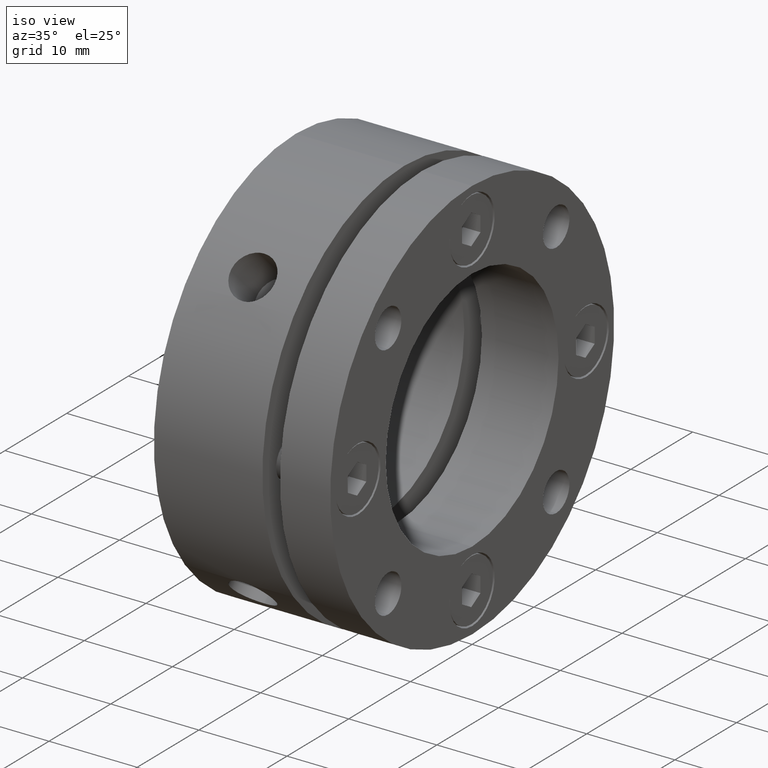
[diagram: clean part render]
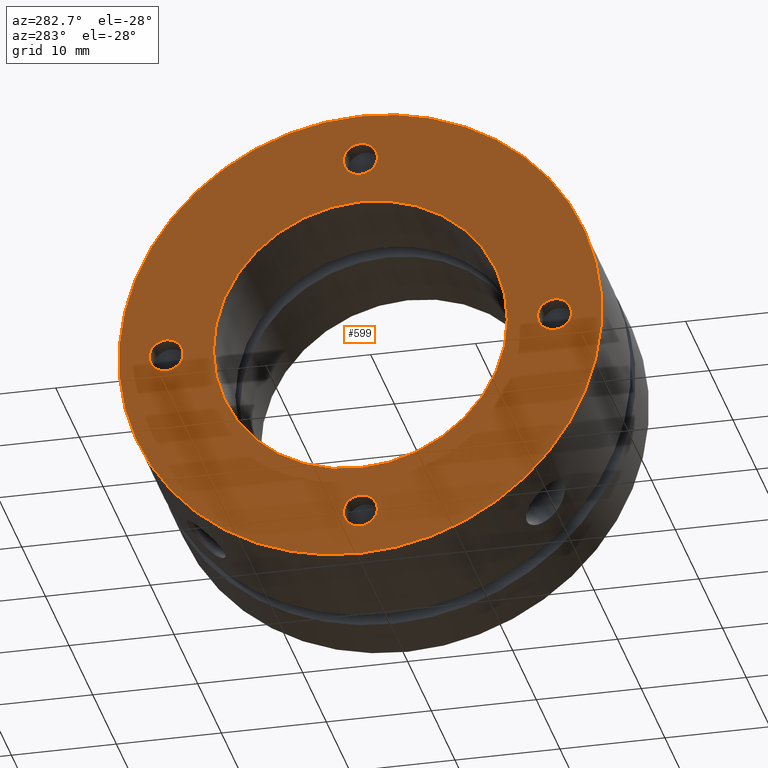
[diagram: tour spotlight — one face highlighted and labeled with its STEP entity id]
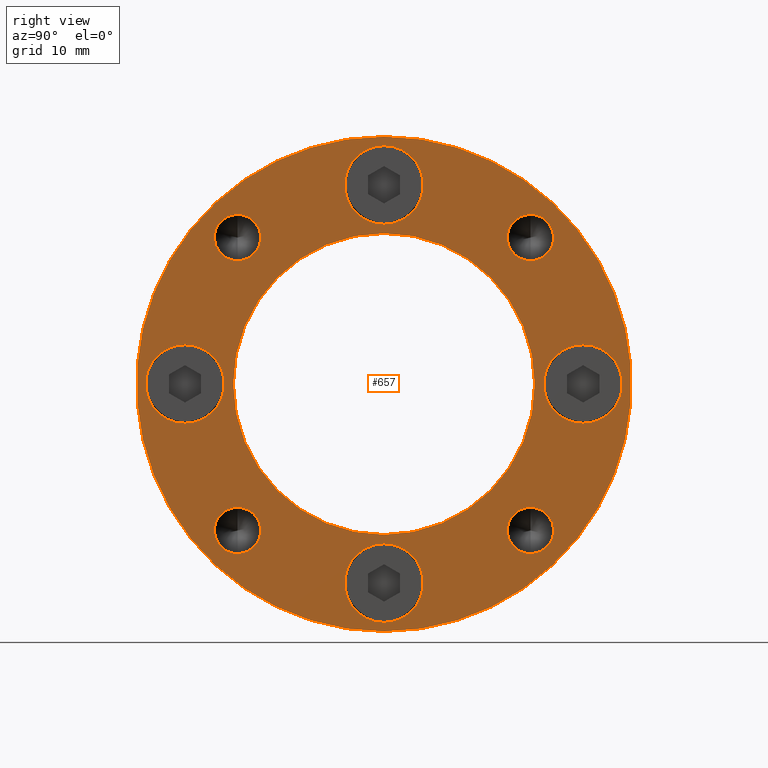
[diagram: tour spotlight — one face highlighted and labeled with its STEP entity id]
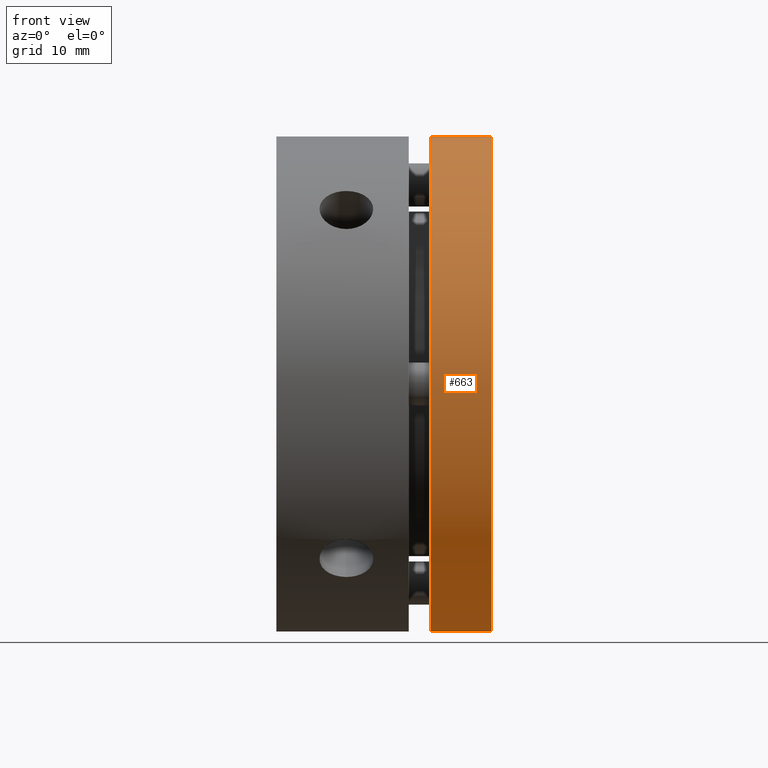
[diagram: tour spotlight — one face highlighted and labeled with its STEP entity id]
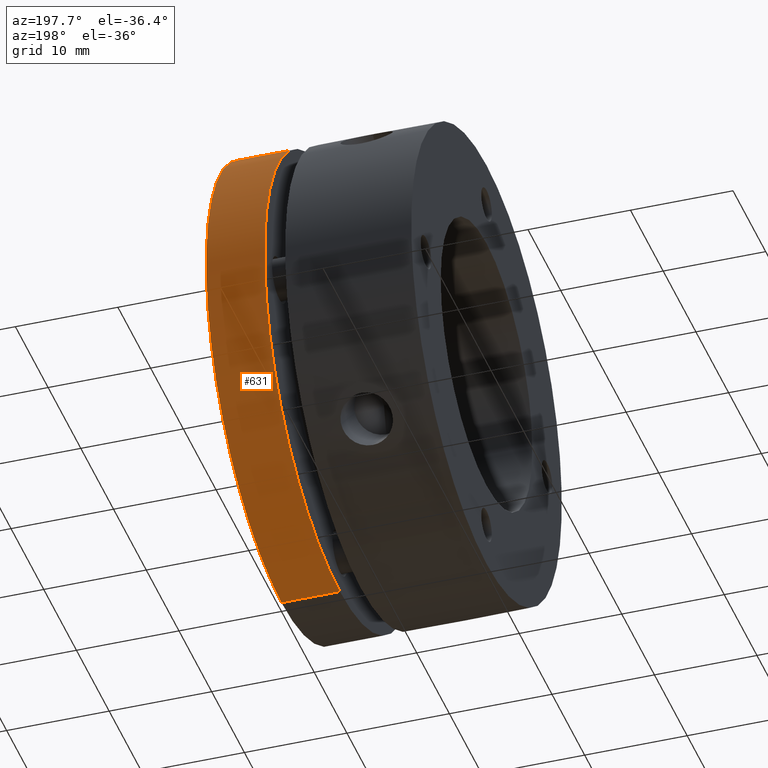
[diagram: tour spotlight — one face highlighted and labeled with its STEP entity id]
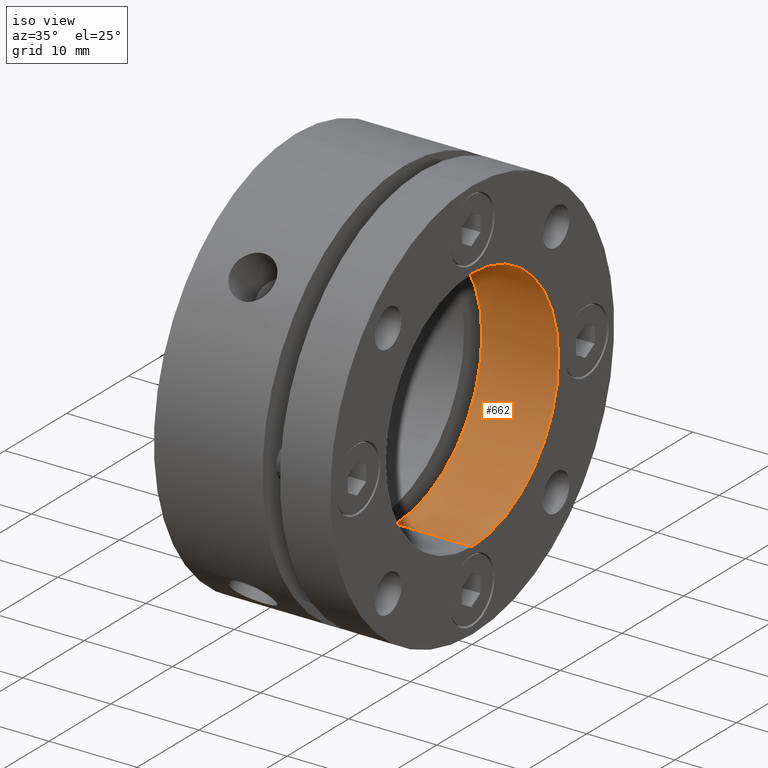
[diagram: tour spotlight — one face highlighted and labeled with its STEP entity id]
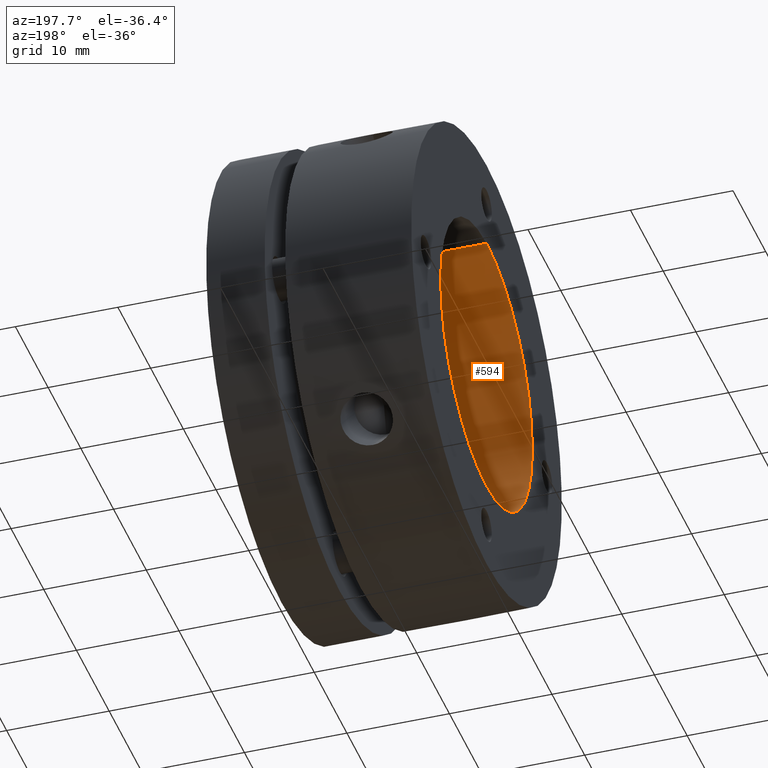
[diagram: tour spotlight — one face highlighted and labeled with its STEP entity id]
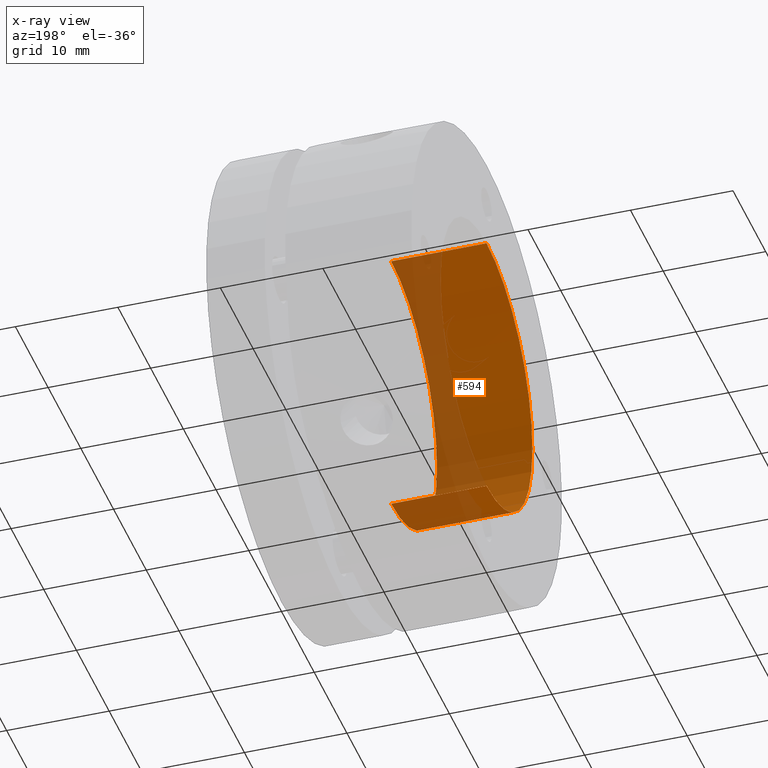
[diagram: x-ray of the same camera — body ghosted, this tour face saturated]
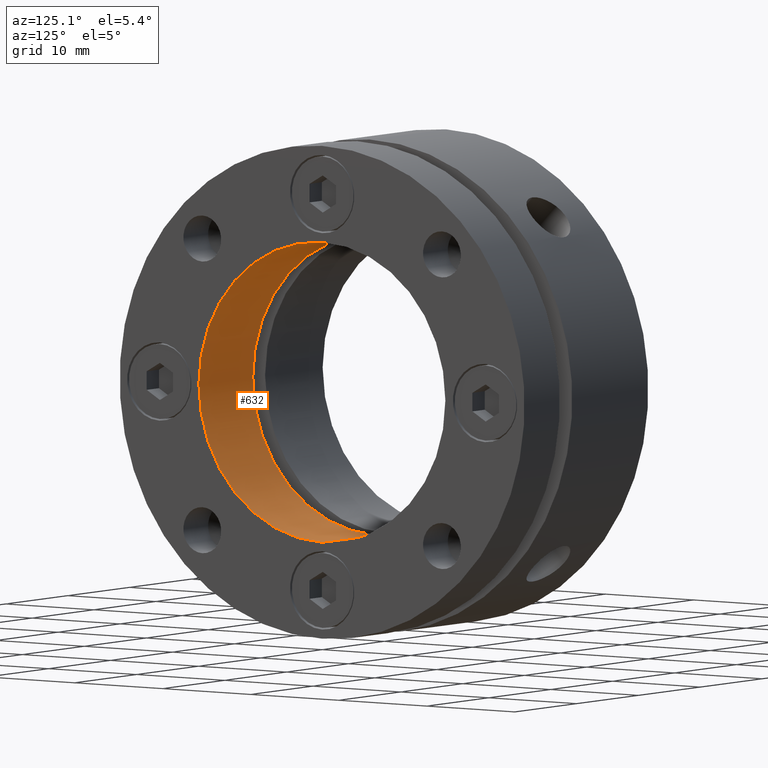
[diagram: tour spotlight — one face highlighted and labeled with its STEP entity id]
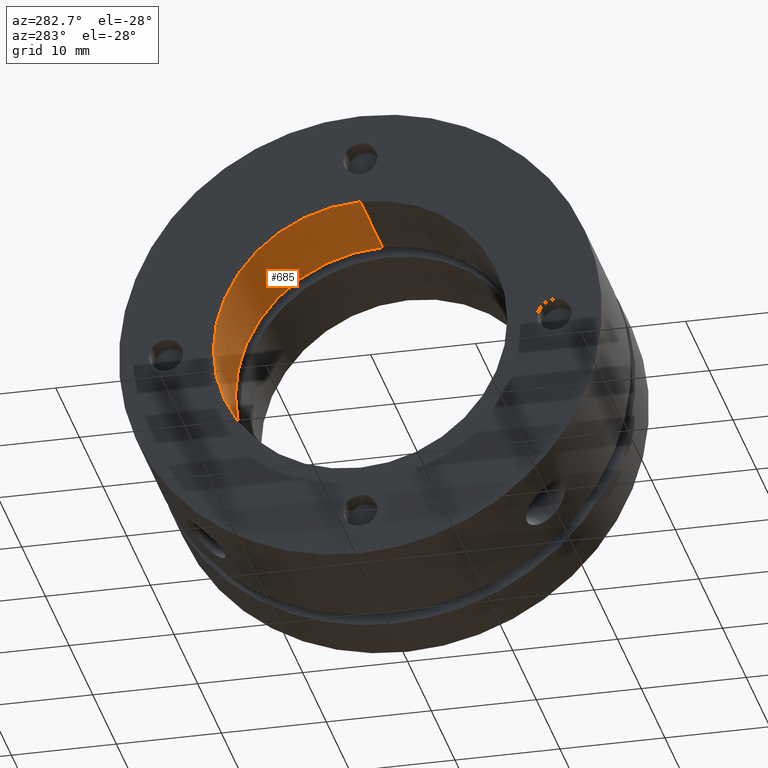
[diagram: tour spotlight — one face highlighted and labeled with its STEP entity id]
A machine part: a face-by-face anatomy tour. The part has 142 B-rep faces; the first image is the clean iso view, then the 8 largest visible faces are spotlighted one at a time (largest first), each with its STEP entity span.

Face 1 — auxiliary view, entity #599. In plain terms, the highlighted planar face has unit normal (-1, 0, 0).
Definition (entity closure, byte-faithful):
#119 = CIRCLE ( 'NONE', #2738, 1.621000000000000900 ) ;
#131 = CIRCLE ( 'NONE', #2741, 14.00000000000000200 ) ;
#132 = CIRCLE ( 'NONE', #2743, 1.621000000000000900 ) ;
#140 = CIRCLE ( 'NONE', #2746, 1.621000000000000000 ) ;
#146 = CIRCLE ( 'NONE', #2750, 23.00000000000000000 ) ;
#155 = CIRCLE ( 'NONE', #2754, 23.00000000000000000 ) ;
#162 = CIRCLE ( 'NONE', #2755, 1.621000000000000000 ) ;
#200 = CIRCLE ( 'NONE', #2260, 14.00000000000000200 ) ;
#226 = CIRCLE ( 'NONE', #2264, 1.621000000000000900 ) ;
#238 = CIRCLE ( 'NONE', #2266, 1.621000000000000000 ) ;
#347 = CIRCLE ( 'NONE', #1642, 1.621000000000000900 ) ;
#356 = CIRCLE ( 'NONE', #2288, 1.621000000000000000 ) ;
#599 = ADVANCED_FACE ( 'NONE', ( #1898, #1906, #1902, #1900, #1904, #1907 ), #2859, .T. ) ;
#765 = CARTESIAN_POINT ( 'NONE',  ( -3.469446951953614200E-015, 0.0000000000000000000, 0.0000000000000000000 ) ) ;
#766 = DIRECTION ( 'NONE',  ( 1.000000000000000000, 0.0000000000000000000, 0.0000000000000000000 ) ) ;
#767 = DIRECTION ( 'NONE',  ( 0.0000000000000000000, 0.0000000000000000000, -1.000000000000000000 ) ) ;
#783 = CARTESIAN_POINT ( 'NONE',  ( -4.336808689942017700E-015, 0.0000000000000000000, 18.50000000000001100 ) ) ;
#784 = DIRECTION ( 'NONE',  ( 1.000000000000000000, -0.0000000000000000000, -0.0000000000000000000 ) ) ;
#785 = DIRECTION ( 'NONE',  ( 0.0000000000000000000, 0.0000000000000000000, 1.000000000000000000 ) ) ;
#793 = CARTESIAN_POINT ( 'NONE',  ( -4.336808689942017700E-015, -18.50000000000001100, 1.132798000000000200E-015 ) ) ;
#794 = DIRECTION ( 'NONE',  ( 1.000000000000000000, -0.0000000000000000000, -0.0000000000000000000 ) ) ;
#795 = DIRECTION ( 'NONE',  ( 0.0000000000000000000, 0.0000000000000000000, 1.000000000000000000 ) ) ;
#894 = CARTESIAN_POINT ( 'NONE',  ( -4.336808689942017700E-015, 18.50000000000001100, -3.398395000000000300E-015 ) ) ;
#895 = DIRECTION ( 'NONE',  ( 1.000000000000000000, -0.0000000000000000000, -0.0000000000000000000 ) ) ;
#896 = DIRECTION ( 'NONE',  ( 0.0000000000000000000, 0.0000000000000000000, 1.000000000000000000 ) ) ;
#1174 = CARTESIAN_POINT ( 'NONE',  ( -4.336808689942017700E-015, -2.265597000000000100E-015, -18.50000000000001100 ) ) ;
#1175 = DIRECTION ( 'NONE',  ( 1.000000000000000000, -0.0000000000000000000, -0.0000000000000000000 ) ) ;
#1176 = DIRECTION ( 'NONE',  ( 0.0000000000000000000, 0.0000000000000000000, 1.000000000000000000 ) ) ;
#1351 = ORIENTED_EDGE ( 'NONE', *, *, #2184, .T. ) ;
#1352 = ORIENTED_EDGE ( 'NONE', *, *, #2177, .T. ) ;
#1353 = ORIENTED_EDGE ( 'NONE', *, *, #1523, .T. ) ;
#1462 = EDGE_CURVE ( 'NONE', #1563, #1575, #119, .T. ) ;
#1523 = EDGE_CURVE ( 'NONE', #1604, #1611, #131, .T. ) ;
#1528 = EDGE_CURVE ( 'NONE', #1617, #1557, #132, .T. ) ;
#1531 = EDGE_CURVE ( 'NONE', #1573, #1568, #140, .T. ) ;
#1539 = EDGE_CURVE ( 'NONE', #2101, #2096, #146, .T. ) ;
#1544 = EDGE_CURVE ( 'NONE', #2096, #2101, #155, .T. ) ;
#1548 = EDGE_CURVE ( 'NONE', #1615, #1556, #162, .T. ) ;
#1556 = VERTEX_POINT ( 'NONE', #3397 ) ;
#1557 = VERTEX_POINT ( 'NONE', #3434 ) ;
#1563 = VERTEX_POINT ( 'NONE', #3439 ) ;
#1568 = VERTEX_POINT ( 'NONE', #3444 ) ;
#1573 = VERTEX_POINT ( 'NONE', #3449 ) ;
#1575 = VERTEX_POINT ( 'NONE', #3451 ) ;
#1604 = VERTEX_POINT ( 'NONE', #3480 ) ;
#1611 = VERTEX_POINT ( 'NONE', #3487 ) ;
#1615 = VERTEX_POINT ( 'NONE', #3491 ) ;
#1617 = VERTEX_POINT ( 'NONE', #3493 ) ;
#1642 = AXIS2_PLACEMENT_3D ( 'NONE', #1174, #1175, #1176 ) ;
#1826 = EDGE_LOOP ( 'NONE', ( #2079, #2082 ) ) ;
#1852 = EDGE_LOOP ( 'NONE', ( #1351, #2059 ) ) ;
#1853 = EDGE_LOOP ( 'NONE', ( #2062, #2058 ) ) ;
#1854 = EDGE_LOOP ( 'NONE', ( #2088, #2077 ) ) ;
#1856 = EDGE_LOOP ( 'NONE', ( #1353, #1352 ) ) ;
#1857 = EDGE_LOOP ( 'NONE', ( #2024, #2067 ) ) ;
#1898 = FACE_BOUND ( 'NONE', #1856, .T. ) ;
#1900 = FACE_BOUND ( 'NONE', #1826, .T. ) ;
#1902 = FACE_BOUND ( 'NONE', #1854, .T. ) ;
#1904 = FACE_BOUND ( 'NONE', #1853, .T. ) ;
#1906 = FACE_BOUND ( 'NONE', #1852, .T. ) ;
#1907 = FACE_OUTER_BOUND ( 'NONE', #1857, .T. ) ;
#2024 = ORIENTED_EDGE ( 'NONE', *, *, #1544, .F. ) ;
#2058 = ORIENTED_EDGE ( 'NONE', *, *, #1531, .T. ) ;
#2059 = ORIENTED_EDGE ( 'NONE', *, *, #1528, .T. ) ;
#2062 = ORIENTED_EDGE ( 'NONE', *, *, #2357, .T. ) ;
#2067 = ORIENTED_EDGE ( 'NONE', *, *, #1539, .F. ) ;
#2077 = ORIENTED_EDGE ( 'NONE', *, *, #1548, .T. ) ;
#2079 = ORIENTED_EDGE ( 'NONE', *, *, #2692, .T. ) ;
#2082 = ORIENTED_EDGE ( 'NONE', *, *, #1462, .T. ) ;
#2088 = ORIENTED_EDGE ( 'NONE', *, *, #2188, .T. ) ;
#2096 = VERTEX_POINT ( 'NONE', #3517 ) ;
#2101 = VERTEX_POINT ( 'NONE', #3507 ) ;
#2177 = EDGE_CURVE ( 'NONE', #1611, #1604, #200, .T. ) ;
#2184 = EDGE_CURVE ( 'NONE', #1557, #1617, #226, .T. ) ;
#2188 = EDGE_CURVE ( 'NONE', #1556, #1615, #238, .T. ) ;
#2260 = AXIS2_PLACEMENT_3D ( 'NONE', #765, #766, #767 ) ;
#2264 = AXIS2_PLACEMENT_3D ( 'NONE', #783, #784, #785 ) ;
#2266 = AXIS2_PLACEMENT_3D ( 'NONE', #793, #794, #795 ) ;
#2288 = AXIS2_PLACEMENT_3D ( 'NONE', #894, #895, #896 ) ;
#2357 = EDGE_CURVE ( 'NONE', #1568, #1573, #356, .T. ) ;
#2692 = EDGE_CURVE ( 'NONE', #1575, #1563, #347, .T. ) ;
#2738 = AXIS2_PLACEMENT_3D ( 'NONE', #3183, #3184, #3185 ) ;
#2741 = AXIS2_PLACEMENT_3D ( 'NONE', #3198, #3199, #3200 ) ;
#2743 = AXIS2_PLACEMENT_3D ( 'NONE', #3242, #3243, #3244 ) ;
#2746 = AXIS2_PLACEMENT_3D ( 'NONE', #3253, #3254, #3255 ) ;
#2750 = AXIS2_PLACEMENT_3D ( 'NONE', #3333, #3334, #3335 ) ;
#2754 = AXIS2_PLACEMENT_3D ( 'NONE', #3351, #3352, #3353 ) ;
#2755 = AXIS2_PLACEMENT_3D ( 'NONE', #3392, #3393, #3394 ) ;
#2761 = AXIS2_PLACEMENT_3D ( 'NONE', #2860, #2857, #2861 ) ;
#2857 = DIRECTION ( 'NONE',  ( -1.000000000000000000, 0.0000000000000000000, 0.0000000000000000000 ) ) ;
#2859 = PLANE ( 'NONE',  #2761 ) ;
#2860 = CARTESIAN_POINT ( 'NONE',  ( -3.916752000000000000E-015, 18.50000000000000000, 0.0000000000000000000 ) ) ;
#2861 = DIRECTION ( 'NONE',  ( 0.0000000000000000000, 0.0000000000000000000, 1.000000000000000000 ) ) ;
#3183 = CARTESIAN_POINT ( 'NONE',  ( -4.336808689942017700E-015, -2.265597000000000100E-015, -18.50000000000001100 ) ) ;
#3184 = DIRECTION ( 'NONE',  ( 1.000000000000000000, -0.0000000000000000000, -0.0000000000000000000 ) ) ;
#3185 = DIRECTION ( 'NONE',  ( 0.0000000000000000000, 0.0000000000000000000, 1.000000000000000000 ) ) ;
#3198 = CARTESIAN_POINT ( 'NONE',  ( -3.469446951953614200E-015, 0.0000000000000000000, 0.0000000000000000000 ) ) ;
#3199 = DIRECTION ( 'NONE',  ( 1.000000000000000000, 0.0000000000000000000, 0.0000000000000000000 ) ) ;
#3200 = DIRECTION ( 'NONE',  ( 0.0000000000000000000, 0.0000000000000000000, -1.000000000000000000 ) ) ;
#3242 = CARTESIAN_POINT ( 'NONE',  ( -4.336808689942017700E-015, 0.0000000000000000000, 18.50000000000001100 ) ) ;
#3243 = DIRECTION ( 'NONE',  ( 1.000000000000000000, -0.0000000000000000000, -0.0000000000000000000 ) ) ;
#3244 = DIRECTION ( 'NONE',  ( 0.0000000000000000000, 0.0000000000000000000, 1.000000000000000000 ) ) ;
#3253 = CARTESIAN_POINT ( 'NONE',  ( -4.336808689942017700E-015, 18.50000000000001100, -3.398395000000000300E-015 ) ) ;
#3254 = DIRECTION ( 'NONE',  ( 1.000000000000000000, -0.0000000000000000000, -0.0000000000000000000 ) ) ;
#3255 = DIRECTION ( 'NONE',  ( 0.0000000000000000000, 0.0000000000000000000, 1.000000000000000000 ) ) ;
#3333 = CARTESIAN_POINT ( 'NONE',  ( -5.204170427930421300E-015, 0.0000000000000000000, 0.0000000000000000000 ) ) ;
#3334 = DIRECTION ( 'NONE',  ( 1.000000000000000000, 0.0000000000000000000, 0.0000000000000000000 ) ) ;
#3335 = DIRECTION ( 'NONE',  ( 0.0000000000000000000, 0.0000000000000000000, -1.000000000000000000 ) ) ;
#3351 = CARTESIAN_POINT ( 'NONE',  ( -5.204170427930421300E-015, 0.0000000000000000000, 0.0000000000000000000 ) ) ;
#3352 = DIRECTION ( 'NONE',  ( 1.000000000000000000, 0.0000000000000000000, 0.0000000000000000000 ) ) ;
#3353 = DIRECTION ( 'NONE',  ( 0.0000000000000000000, 0.0000000000000000000, -1.000000000000000000 ) ) ;
#3392 = CARTESIAN_POINT ( 'NONE',  ( -4.336808689942017700E-015, -18.50000000000001100, 1.132798000000000200E-015 ) ) ;
#3393 = DIRECTION ( 'NONE',  ( 1.000000000000000000, -0.0000000000000000000, -0.0000000000000000000 ) ) ;
#3394 = DIRECTION ( 'NONE',  ( 0.0000000000000000000, 0.0000000000000000000, 1.000000000000000000 ) ) ;
#3397 = CARTESIAN_POINT ( 'NONE',  ( -4.336808689942017700E-015, -18.50000000000001100, 1.621000000000001100 ) ) ;
#3434 = CARTESIAN_POINT ( 'NONE',  ( -4.336808689942017700E-015, 0.0000000000000000000, 20.12100000000000900 ) ) ;
#3439 = CARTESIAN_POINT ( 'NONE',  ( -4.336808689942017700E-015, -2.067081753858213900E-015, -20.12100000000000900 ) ) ;
#3444 = CARTESIAN_POINT ( 'NONE',  ( -4.336808689942017700E-015, 18.50000000000001100, 1.620999999999996700 ) ) ;
#3449 = CARTESIAN_POINT ( 'NONE',  ( -4.336808689942017700E-015, 18.50000000000001100, -1.621000000000003500 ) ) ;
#3451 = CARTESIAN_POINT ( 'NONE',  ( -4.336808689942017700E-015, -2.265597000000000100E-015, -16.87900000000000800 ) ) ;
#3480 = CARTESIAN_POINT ( 'NONE',  ( -3.469446951953614200E-015, 0.0000000000000000000, -14.00000000000000200 ) ) ;
#3487 = CARTESIAN_POINT ( 'NONE',  ( -3.469446951953614200E-015, 1.714505518806294800E-015, 14.00000000000000200 ) ) ;
#3491 = CARTESIAN_POINT ( 'NONE',  ( -4.336808689942017700E-015, -18.50000000000001100, -1.620999999999998900 ) ) ;
#3493 = CARTESIAN_POINT ( 'NONE',  ( -4.336808689942017700E-015, 1.985152461417858200E-016, 16.87900000000000800 ) ) ;
#3507 = CARTESIAN_POINT ( 'NONE',  ( -5.204170427930421300E-015, 2.816687638038912400E-015, 23.00000000000000000 ) ) ;
#3517 = CARTESIAN_POINT ( 'NONE',  ( -5.204170427930421300E-015, 0.0000000000000000000, -23.00000000000000000 ) ) ;

Face 2 — right view, entity #657. In plain terms, the highlighted planar face has unit normal (1, 0, 0).
Definition (entity closure, byte-faithful):
#6 = FACE_BOUND ( 'NONE', #1732, .T. ) ;
#8 = FACE_BOUND ( 'NONE', #1789, .T. ) ;
#10 = FACE_BOUND ( 'NONE', #1790, .T. ) ;
#12 = FACE_BOUND ( 'NONE', #1788, .T. ) ;
#14 = FACE_BOUND ( 'NONE', #1787, .T. ) ;
#15 = FACE_BOUND ( 'NONE', #1777, .T. ) ;
#16 = FACE_BOUND ( 'NONE', #1791, .T. ) ;
#17 = FACE_BOUND ( 'NONE', #1792, .T. ) ;
#18 = FACE_BOUND ( 'NONE', #1793, .T. ) ;
#19 = FACE_OUTER_BOUND ( 'NONE', #1794, .T. ) ;
#179 = CIRCLE ( 'NONE', #2300, 2.150000000000000800 ) ;
#183 = CIRCLE ( 'NONE', #2302, 2.150000000000000800 ) ;
#239 = CIRCLE ( 'NONE', #2318, 2.150000000000000800 ) ;
#246 = CIRCLE ( 'NONE', #2268, 2.150000000000000800 ) ;
#253 = CIRCLE ( 'NONE', #1626, 2.149999999999999000 ) ;
#255 = CIRCLE ( 'NONE', #1628, 3.649999999999999900 ) ;
#261 = CIRCLE ( 'NONE', #1630, 3.650000000000000400 ) ;
#281 = CIRCLE ( 'NONE', #1632, 3.649999999999999900 ) ;
#292 = CIRCLE ( 'NONE', #2279, 2.149999999999999000 ) ;
#293 = CIRCLE ( 'NONE', #1634, 3.650000000000000400 ) ;
#305 = CIRCLE ( 'NONE', #1636, 23.00000000000000000 ) ;
#317 = CIRCLE ( 'NONE', #1639, 14.00000000000000200 ) ;
#381 = CIRCLE ( 'NONE', #1645, 3.649999999999999900 ) ;
#387 = CIRCLE ( 'NONE', #1646, 2.150000000000000800 ) ;
#395 = CIRCLE ( 'NONE', #1649, 2.150000000000000800 ) ;
#397 = CIRCLE ( 'NONE', #1650, 3.650000000000000400 ) ;
#399 = CIRCLE ( 'NONE', #1651, 3.649999999999999900 ) ;
#403 = CIRCLE ( 'NONE', #1653, 3.650000000000000400 ) ;
#405 = CIRCLE ( 'NONE', #1654, 23.00000000000000000 ) ;
#407 = CIRCLE ( 'NONE', #1655, 14.00000000000000200 ) ;
#554 = ORIENTED_EDGE ( 'NONE', *, *, #2380, .T. ) ;
#564 = ORIENTED_EDGE ( 'NONE', *, *, #2783, .F. ) ;
#566 = ORIENTED_EDGE ( 'NONE', *, *, #2680, .F. ) ;
#576 = ORIENTED_EDGE ( 'NONE', *, *, #2778, .T. ) ;
#657 = ADVANCED_FACE ( 'NONE', ( #6, #14, #10, #8, #12, #15, #16, #17, #18, #19 ), #3044, .T. ) ;
#799 = CARTESIAN_POINT ( 'NONE',  ( 19.99999999999999600, -13.61180553784104000, 13.61180553784104100 ) ) ;
#800 = DIRECTION ( 'NONE',  ( -1.000000000000000000, -0.0000000000000000000, -0.0000000000000000000 ) ) ;
#801 = DIRECTION ( 'NONE',  ( 0.0000000000000000000, 0.0000000000000000000, -1.000000000000000000 ) ) ;
#849 = CARTESIAN_POINT ( 'NONE',  ( 19.99999999999999600, -13.61180553784104100, -13.61180553784104000 ) ) ;
#850 = DIRECTION ( 'NONE',  ( -1.000000000000000000, -0.0000000000000000000, -0.0000000000000000000 ) ) ;
#851 = DIRECTION ( 'NONE',  ( 0.0000000000000000000, 0.0000000000000000000, -1.000000000000000000 ) ) ;
#951 = CARTESIAN_POINT ( 'NONE',  ( 19.99999999999999600, 13.61180553784104300, 13.61180553784103800 ) ) ;
#952 = DIRECTION ( 'NONE',  ( -1.000000000000000000, -0.0000000000000000000, -0.0000000000000000000 ) ) ;
#953 = DIRECTION ( 'NONE',  ( 0.0000000000000000000, 0.0000000000000000000, -1.000000000000000000 ) ) ;
#958 = CARTESIAN_POINT ( 'NONE',  ( 19.99999999999999600, -13.61180553784104000, 13.61180553784104100 ) ) ;
#959 = DIRECTION ( 'NONE',  ( -1.000000000000000000, -0.0000000000000000000, -0.0000000000000000000 ) ) ;
#960 = DIRECTION ( 'NONE',  ( 0.0000000000000000000, 0.0000000000000000000, -1.000000000000000000 ) ) ;
#1017 = CARTESIAN_POINT ( 'NONE',  ( 19.99999999999999600, 13.61180553784104000, -13.61180553784104100 ) ) ;
#1018 = DIRECTION ( 'NONE',  ( -1.000000000000000000, -0.0000000000000000000, -0.0000000000000000000 ) ) ;
#1019 = DIRECTION ( 'NONE',  ( 0.0000000000000000000, 0.0000000000000000000, -1.000000000000000000 ) ) ;
#1040 = CARTESIAN_POINT ( 'NONE',  ( 19.99999999999999600, -13.61180553784104100, -13.61180553784104000 ) ) ;
#1041 = DIRECTION ( 'NONE',  ( -1.000000000000000000, -0.0000000000000000000, -0.0000000000000000000 ) ) ;
#1042 = DIRECTION ( 'NONE',  ( 0.0000000000000000000, 0.0000000000000000000, -1.000000000000000000 ) ) ;
#1045 = CARTESIAN_POINT ( 'NONE',  ( 19.99999999999999600, 13.61180553784104000, -15.76180553784104400 ) ) ;
#1047 = CARTESIAN_POINT ( 'NONE',  ( 19.99999999999999600, -13.61180553784104100, -15.76180553784104000 ) ) ;
#1050 = CARTESIAN_POINT ( 'NONE',  ( 19.99999999999999600, 1.714505518806294800E-015, 14.00000000000000200 ) ) ;
#1058 = CARTESIAN_POINT ( 'NONE',  ( 19.99999999999999600, -13.61180553784104100, -11.46180553784104100 ) ) ;
#1061 = CARTESIAN_POINT ( 'NONE',  ( 19.99999999999999600, 13.61180553784104000, -11.46180553784104100 ) ) ;
#1064 = CARTESIAN_POINT ( 'NONE',  ( 19.99999999999999600, 0.0000000000000000000, 14.85000000000000900 ) ) ;
#1070 = CARTESIAN_POINT ( 'NONE',  ( 19.99999999999999600, -13.61180553784104000, 11.46180553784104100 ) ) ;
#1073 = CARTESIAN_POINT ( 'NONE',  ( 19.99999999999999600, 18.50000000000001100, -3.650000000000003500 ) ) ;
#1074 = CARTESIAN_POINT ( 'NONE',  ( 19.99999999999999600, 18.50000000000001100, 3.649999999999996400 ) ) ;
#1076 = CARTESIAN_POINT ( 'NONE',  ( 19.99999999999999600, -18.50000000000001100, 3.650000000000001200 ) ) ;
#1077 = CARTESIAN_POINT ( 'NONE',  ( 19.99999999999999600, 0.0000000000000000000, -14.00000000000000200 ) ) ;
#1079 = CARTESIAN_POINT ( 'NONE',  ( 19.99999999999999600, -13.61180553784104000, 15.76180553784104400 ) ) ;
#1081 = CARTESIAN_POINT ( 'NONE',  ( 19.99999999999999600, -18.50000000000001100, -3.649999999999998600 ) ) ;
#1083 = CARTESIAN_POINT ( 'NONE',  ( 19.99999999999999600, 13.61180553784104300, 15.76180553784104000 ) ) ;
#1085 = CARTESIAN_POINT ( 'NONE',  ( 19.99999999999999600, -1.818600918311216300E-015, -14.85000000000000900 ) ) ;
#1087 = CARTESIAN_POINT ( 'NONE',  ( 19.99999999999999600, 4.469960816887838400E-016, 22.15000000000000900 ) ) ;
#1091 = CARTESIAN_POINT ( 'NONE',  ( 19.99999999999999600, -2.265597000000000100E-015, -22.15000000000000900 ) ) ;
#1093 = CARTESIAN_POINT ( 'NONE',  ( 19.99999999999999600, 13.61180553784104300, 11.46180553784103800 ) ) ;
#1102 = CARTESIAN_POINT ( 'NONE',  ( 19.99999999999999600, 18.50000000000001100, -3.398395000000000300E-015 ) ) ;
#1103 = DIRECTION ( 'NONE',  ( -1.000000000000000000, -0.0000000000000000000, -0.0000000000000000000 ) ) ;
#1104 = DIRECTION ( 'NONE',  ( 0.0000000000000000000, 0.0000000000000000000, -1.000000000000000000 ) ) ;
#1111 = CARTESIAN_POINT ( 'NONE',  ( 19.99999999999999600, -2.265597000000000100E-015, -18.50000000000001100 ) ) ;
#1112 = DIRECTION ( 'NONE',  ( -1.000000000000000000, -0.0000000000000000000, -0.0000000000000000000 ) ) ;
#1113 = DIRECTION ( 'NONE',  ( 0.0000000000000000000, 0.0000000000000000000, -1.000000000000000000 ) ) ;
#1121 = CARTESIAN_POINT ( 'NONE',  ( 19.99999999999999600, -18.50000000000001100, 1.132798000000000200E-015 ) ) ;
#1122 = DIRECTION ( 'NONE',  ( -1.000000000000000000, -0.0000000000000000000, -0.0000000000000000000 ) ) ;
#1123 = DIRECTION ( 'NONE',  ( 0.0000000000000000000, 0.0000000000000000000, -1.000000000000000000 ) ) ;
#1131 = CARTESIAN_POINT ( 'NONE',  ( 19.99999999999999600, 0.0000000000000000000, 18.50000000000001100 ) ) ;
#1132 = DIRECTION ( 'NONE',  ( -1.000000000000000000, -0.0000000000000000000, -0.0000000000000000000 ) ) ;
#1133 = DIRECTION ( 'NONE',  ( 0.0000000000000000000, 0.0000000000000000000, -1.000000000000000000 ) ) ;
#1142 = CARTESIAN_POINT ( 'NONE',  ( 19.99999999999999300, 0.0000000000000000000, 0.0000000000000000000 ) ) ;
#1143 = DIRECTION ( 'NONE',  ( -1.000000000000000000, -0.0000000000000000000, -0.0000000000000000000 ) ) ;
#1144 = DIRECTION ( 'NONE',  ( 0.0000000000000000000, 0.0000000000000000000, -1.000000000000000000 ) ) ;
#1156 = CARTESIAN_POINT ( 'NONE',  ( 19.99999999999999600, 0.0000000000000000000, 0.0000000000000000000 ) ) ;
#1157 = DIRECTION ( 'NONE',  ( -1.000000000000000000, -0.0000000000000000000, -0.0000000000000000000 ) ) ;
#1158 = DIRECTION ( 'NONE',  ( 0.0000000000000000000, 0.0000000000000000000, -1.000000000000000000 ) ) ;
#1196 = CARTESIAN_POINT ( 'NONE',  ( 19.99999999999999600, -18.50000000000001100, 1.132798000000000200E-015 ) ) ;
#1197 = DIRECTION ( 'NONE',  ( -1.000000000000000000, -0.0000000000000000000, -0.0000000000000000000 ) ) ;
#1198 = DIRECTION ( 'NONE',  ( 0.0000000000000000000, 0.0000000000000000000, -1.000000000000000000 ) ) ;
#1199 = CARTESIAN_POINT ( 'NONE',  ( 19.99999999999999600, 13.61180553784104000, -13.61180553784104100 ) ) ;
#1200 = DIRECTION ( 'NONE',  ( -1.000000000000000000, -0.0000000000000000000, -0.0000000000000000000 ) ) ;
#1201 = DIRECTION ( 'NONE',  ( 0.0000000000000000000, 0.0000000000000000000, -1.000000000000000000 ) ) ;
#1208 = CARTESIAN_POINT ( 'NONE',  ( 19.99999999999999600, 13.61180553784104300, 13.61180553784103800 ) ) ;
#1209 = DIRECTION ( 'NONE',  ( -1.000000000000000000, -0.0000000000000000000, -0.0000000000000000000 ) ) ;
#1210 = DIRECTION ( 'NONE',  ( 0.0000000000000000000, 0.0000000000000000000, -1.000000000000000000 ) ) ;
#1211 = CARTESIAN_POINT ( 'NONE',  ( 19.99999999999999600, -2.265597000000000100E-015, -18.50000000000001100 ) ) ;
#1212 = DIRECTION ( 'NONE',  ( -1.000000000000000000, -0.0000000000000000000, -0.0000000000000000000 ) ) ;
#1213 = DIRECTION ( 'NONE',  ( 0.0000000000000000000, 0.0000000000000000000, -1.000000000000000000 ) ) ;
#1214 = CARTESIAN_POINT ( 'NONE',  ( 19.99999999999999600, 18.50000000000001100, -3.398395000000000300E-015 ) ) ;
#1215 = DIRECTION ( 'NONE',  ( -1.000000000000000000, -0.0000000000000000000, -0.0000000000000000000 ) ) ;
#1216 = DIRECTION ( 'NONE',  ( 0.0000000000000000000, 0.0000000000000000000, -1.000000000000000000 ) ) ;
#1220 = CARTESIAN_POINT ( 'NONE',  ( 19.99999999999999600, 0.0000000000000000000, 18.50000000000001100 ) ) ;
#1221 = DIRECTION ( 'NONE',  ( -1.000000000000000000, -0.0000000000000000000, -0.0000000000000000000 ) ) ;
#1222 = DIRECTION ( 'NONE',  ( 0.0000000000000000000, 0.0000000000000000000, -1.000000000000000000 ) ) ;
#1224 = CARTESIAN_POINT ( 'NONE',  ( 19.99999999999999300, 0.0000000000000000000, 0.0000000000000000000 ) ) ;
#1225 = DIRECTION ( 'NONE',  ( -1.000000000000000000, -0.0000000000000000000, -0.0000000000000000000 ) ) ;
#1226 = DIRECTION ( 'NONE',  ( 0.0000000000000000000, 0.0000000000000000000, -1.000000000000000000 ) ) ;
#1227 = CARTESIAN_POINT ( 'NONE',  ( 19.99999999999999600, 0.0000000000000000000, 0.0000000000000000000 ) ) ;
#1228 = DIRECTION ( 'NONE',  ( -1.000000000000000000, -0.0000000000000000000, -0.0000000000000000000 ) ) ;
#1229 = DIRECTION ( 'NONE',  ( 0.0000000000000000000, 0.0000000000000000000, -1.000000000000000000 ) ) ;
#1579 = VERTEX_POINT ( 'NONE', #3455 ) ;
#1585 = VERTEX_POINT ( 'NONE', #3461 ) ;
#1626 = AXIS2_PLACEMENT_3D ( 'NONE', #1040, #1041, #1042 ) ;
#1628 = AXIS2_PLACEMENT_3D ( 'NONE', #1102, #1103, #1104 ) ;
#1630 = AXIS2_PLACEMENT_3D ( 'NONE', #1111, #1112, #1113 ) ;
#1632 = AXIS2_PLACEMENT_3D ( 'NONE', #1121, #1122, #1123 ) ;
#1634 = AXIS2_PLACEMENT_3D ( 'NONE', #1131, #1132, #1133 ) ;
#1636 = AXIS2_PLACEMENT_3D ( 'NONE', #1142, #1143, #1144 ) ;
#1639 = AXIS2_PLACEMENT_3D ( 'NONE', #1156, #1157, #1158 ) ;
#1645 = AXIS2_PLACEMENT_3D ( 'NONE', #1196, #1197, #1198 ) ;
#1646 = AXIS2_PLACEMENT_3D ( 'NONE', #1199, #1200, #1201 ) ;
#1649 = AXIS2_PLACEMENT_3D ( 'NONE', #1208, #1209, #1210 ) ;
#1650 = AXIS2_PLACEMENT_3D ( 'NONE', #1211, #1212, #1213 ) ;
#1651 = AXIS2_PLACEMENT_3D ( 'NONE', #1214, #1215, #1216 ) ;
#1653 = AXIS2_PLACEMENT_3D ( 'NONE', #1220, #1221, #1222 ) ;
#1654 = AXIS2_PLACEMENT_3D ( 'NONE', #1224, #1225, #1226 ) ;
#1655 = AXIS2_PLACEMENT_3D ( 'NONE', #1227, #1228, #1229 ) ;
#1732 = EDGE_LOOP ( 'NONE', ( #2808, #2794 ) ) ;
#1777 = EDGE_LOOP ( 'NONE', ( #2806, #2818 ) ) ;
#1787 = EDGE_LOOP ( 'NONE', ( #2788, #2790 ) ) ;
#1788 = EDGE_LOOP ( 'NONE', ( #2821, #2785 ) ) ;
#1789 = EDGE_LOOP ( 'NONE', ( #2797, #2800 ) ) ;
#1790 = EDGE_LOOP ( 'NONE', ( #2802, #2812 ) ) ;
#1791 = EDGE_LOOP ( 'NONE', ( #2803, #2814 ) ) ;
#1792 = EDGE_LOOP ( 'NONE', ( #2792, #2787 ) ) ;
#1793 = EDGE_LOOP ( 'NONE', ( #554, #576 ) ) ;
#1794 = EDGE_LOOP ( 'NONE', ( #564, #566 ) ) ;
#2191 = EDGE_CURVE ( 'NONE', #2631, #2644, #246, .T. ) ;
#2268 = AXIS2_PLACEMENT_3D ( 'NONE', #799, #800, #801 ) ;
#2279 = AXIS2_PLACEMENT_3D ( 'NONE', #849, #850, #851 ) ;
#2300 = AXIS2_PLACEMENT_3D ( 'NONE', #951, #952, #953 ) ;
#2302 = AXIS2_PLACEMENT_3D ( 'NONE', #958, #959, #960 ) ;
#2318 = AXIS2_PLACEMENT_3D ( 'NONE', #1017, #1018, #1019 ) ;
#2339 = EDGE_CURVE ( 'NONE', #2607, #2615, #292, .T. ) ;
#2380 = EDGE_CURVE ( 'NONE', #2660, #2648, #179, .T. ) ;
#2382 = EDGE_CURVE ( 'NONE', #2644, #2631, #183, .T. ) ;
#2404 = EDGE_CURVE ( 'NONE', #2598, #2618, #239, .T. ) ;
#2410 = EDGE_CURVE ( 'NONE', #2615, #2607, #253, .T. ) ;
#2598 = VERTEX_POINT ( 'NONE', #1045 ) ;
#2604 = VERTEX_POINT ( 'NONE', #1050 ) ;
#2607 = VERTEX_POINT ( 'NONE', #1047 ) ;
#2615 = VERTEX_POINT ( 'NONE', #1058 ) ;
#2618 = VERTEX_POINT ( 'NONE', #1061 ) ;
#2622 = VERTEX_POINT ( 'NONE', #1064 ) ;
#2631 = VERTEX_POINT ( 'NONE', #1070 ) ;
#2635 = VERTEX_POINT ( 'NONE', #1073 ) ;
#2640 = VERTEX_POINT ( 'NONE', #1076 ) ;
#2643 = VERTEX_POINT ( 'NONE', #1074 ) ;
#2644 = VERTEX_POINT ( 'NONE', #1079 ) ;
#2646 = VERTEX_POINT ( 'NONE', #1081 ) ;
#2648 = VERTEX_POINT ( 'NONE', #1083 ) ;
#2649 = VERTEX_POINT ( 'NONE', #1077 ) ;
#2651 = VERTEX_POINT ( 'NONE', #1085 ) ;
#2653 = VERTEX_POINT ( 'NONE', #1087 ) ;
#2658 = VERTEX_POINT ( 'NONE', #1091 ) ;
#2660 = VERTEX_POINT ( 'NONE', #1093 ) ;
#2663 = EDGE_CURVE ( 'NONE', #2635, #2643, #255, .T. ) ;
#2667 = EDGE_CURVE ( 'NONE', #2658, #2651, #261, .T. ) ;
#2671 = EDGE_CURVE ( 'NONE', #2646, #2640, #281, .T. ) ;
#2675 = EDGE_CURVE ( 'NONE', #2622, #2653, #293, .T. ) ;
#2680 = EDGE_CURVE ( 'NONE', #1585, #1579, #305, .T. ) ;
#2684 = EDGE_CURVE ( 'NONE', #2649, #2604, #317, .T. ) ;
#2703 = AXIS2_PLACEMENT_3D ( 'NONE', #3046, #3042, #3048 ) ;
#2773 = EDGE_CURVE ( 'NONE', #2640, #2646, #381, .T. ) ;
#2775 = EDGE_CURVE ( 'NONE', #2618, #2598, #387, .T. ) ;
#2778 = EDGE_CURVE ( 'NONE', #2648, #2660, #395, .T. ) ;
#2779 = EDGE_CURVE ( 'NONE', #2651, #2658, #397, .T. ) ;
#2780 = EDGE_CURVE ( 'NONE', #2643, #2635, #399, .T. ) ;
#2782 = EDGE_CURVE ( 'NONE', #2653, #2622, #403, .T. ) ;
#2783 = EDGE_CURVE ( 'NONE', #1579, #1585, #405, .T. ) ;
#2784 = EDGE_CURVE ( 'NONE', #2604, #2649, #407, .T. ) ;
#2785 = ORIENTED_EDGE ( 'NONE', *, *, #2780, .T. ) ;
#2787 = ORIENTED_EDGE ( 'NONE', *, *, #2775, .T. ) ;
#2788 = ORIENTED_EDGE ( 'NONE', *, *, #2675, .T. ) ;
#2790 = ORIENTED_EDGE ( 'NONE', *, *, #2782, .T. ) ;
#2792 = ORIENTED_EDGE ( 'NONE', *, *, #2404, .T. ) ;
#2794 = ORIENTED_EDGE ( 'NONE', *, *, #2784, .T. ) ;
#2797 = ORIENTED_EDGE ( 'NONE', *, *, #2667, .T. ) ;
#2800 = ORIENTED_EDGE ( 'NONE', *, *, #2779, .T. ) ;
#2802 = ORIENTED_EDGE ( 'NONE', *, *, #2671, .T. ) ;
#2803 = ORIENTED_EDGE ( 'NONE', *, *, #2339, .T. ) ;
#2806 = ORIENTED_EDGE ( 'NONE', *, *, #2191, .T. ) ;
#2808 = ORIENTED_EDGE ( 'NONE', *, *, #2684, .T. ) ;
#2812 = ORIENTED_EDGE ( 'NONE', *, *, #2773, .T. ) ;
#2814 = ORIENTED_EDGE ( 'NONE', *, *, #2410, .T. ) ;
#2818 = ORIENTED_EDGE ( 'NONE', *, *, #2382, .T. ) ;
#2821 = ORIENTED_EDGE ( 'NONE', *, *, #2663, .T. ) ;
#3042 = DIRECTION ( 'NONE',  ( 1.000000000000000000, -0.0000000000000000000, 0.0000000000000000000 ) ) ;
#3044 = PLANE ( 'NONE',  #2703 ) ;
#3046 = CARTESIAN_POINT ( 'NONE',  ( 19.99999999999999600, 18.50000000000000000, 0.0000000000000000000 ) ) ;
#3048 = DIRECTION ( 'NONE',  ( 0.0000000000000000000, 0.0000000000000000000, -1.000000000000000000 ) ) ;
#3455 = CARTESIAN_POINT ( 'NONE',  ( 19.99999999999999300, 0.0000000000000000000, -23.00000000000000000 ) ) ;
#3461 = CARTESIAN_POINT ( 'NONE',  ( 19.99999999999999300, 2.816687638038912400E-015, 23.00000000000000000 ) ) ;

Face 3 — front view, entity #663. In plain terms, the highlighted cylindrical surface (partial cylindrical patch) has radius 23 mm, axis along (1, 0, 0).
Definition (entity closure, byte-faithful):
#31 = FACE_OUTER_BOUND ( 'NONE', #1805, .T. ) ;
#35 = CYLINDRICAL_SURFACE ( 'NONE', #2709, 23.00000000000000000 ) ;
#243 = CIRCLE ( 'NONE', #2320, 23.00000000000000000 ) ;
#307 = LINE ( 'NONE', #1140, #313 ) ;
#313 = VECTOR ( 'NONE', #1141, 1000.000000000000000 ) ;
#331 = LINE ( 'NONE', #1153, #335 ) ;
#335 = VECTOR ( 'NONE', #1154, 1000.000000000000000 ) ;
#405 = CIRCLE ( 'NONE', #1654, 23.00000000000000000 ) ;
#550 = ORIENTED_EDGE ( 'NONE', *, *, #2687, .T. ) ;
#561 = ORIENTED_EDGE ( 'NONE', *, *, #2406, .T. ) ;
#568 = ORIENTED_EDGE ( 'NONE', *, *, #2783, .T. ) ;
#575 = ORIENTED_EDGE ( 'NONE', *, *, #2679, .F. ) ;
#663 = ADVANCED_FACE ( 'NONE', ( #31 ), #35, .T. ) ;
#1023 = CARTESIAN_POINT ( 'NONE',  ( 14.29999999999999900, 0.0000000000000000000, 0.0000000000000000000 ) ) ;
#1024 = DIRECTION ( 'NONE',  ( 1.000000000000000000, 0.0000000000000000000, 0.0000000000000000000 ) ) ;
#1025 = DIRECTION ( 'NONE',  ( 0.0000000000000000000, 0.0000000000000000000, -1.000000000000000000 ) ) ;
#1140 = CARTESIAN_POINT ( 'NONE',  ( 9.999999999999994700, 2.816687638038912400E-015, 23.00000000000000000 ) ) ;
#1141 = DIRECTION ( 'NONE',  ( 1.000000000000000000, 0.0000000000000000000, 0.0000000000000000000 ) ) ;
#1153 = CARTESIAN_POINT ( 'NONE',  ( 9.999999999999994700, 0.0000000000000000000, -23.00000000000000000 ) ) ;
#1154 = DIRECTION ( 'NONE',  ( 1.000000000000000000, 0.0000000000000000000, 0.0000000000000000000 ) ) ;
#1224 = CARTESIAN_POINT ( 'NONE',  ( 19.99999999999999300, 0.0000000000000000000, 0.0000000000000000000 ) ) ;
#1225 = DIRECTION ( 'NONE',  ( -1.000000000000000000, -0.0000000000000000000, -0.0000000000000000000 ) ) ;
#1226 = DIRECTION ( 'NONE',  ( 0.0000000000000000000, 0.0000000000000000000, -1.000000000000000000 ) ) ;
#1579 = VERTEX_POINT ( 'NONE', #3455 ) ;
#1585 = VERTEX_POINT ( 'NONE', #3461 ) ;
#1596 = VERTEX_POINT ( 'NONE', #3472 ) ;
#1620 = VERTEX_POINT ( 'NONE', #3496 ) ;
#1654 = AXIS2_PLACEMENT_3D ( 'NONE', #1224, #1225, #1226 ) ;
#1805 = EDGE_LOOP ( 'NONE', ( #575, #561, #550, #568 ) ) ;
#2320 = AXIS2_PLACEMENT_3D ( 'NONE', #1023, #1024, #1025 ) ;
#2406 = EDGE_CURVE ( 'NONE', #1620, #1596, #243, .T. ) ;
#2679 = EDGE_CURVE ( 'NONE', #1620, #1585, #307, .T. ) ;
#2687 = EDGE_CURVE ( 'NONE', #1596, #1579, #331, .T. ) ;
#2709 = AXIS2_PLACEMENT_3D ( 'NONE', #3069, #3067, #3061 ) ;
#2783 = EDGE_CURVE ( 'NONE', #1579, #1585, #405, .T. ) ;
#3061 = DIRECTION ( 'NONE',  ( 0.0000000000000000000, 0.0000000000000000000, -1.000000000000000000 ) ) ;
#3067 = DIRECTION ( 'NONE',  ( 1.000000000000000000, 0.0000000000000000000, 0.0000000000000000000 ) ) ;
#3069 = CARTESIAN_POINT ( 'NONE',  ( 9.999999999999994700, 0.0000000000000000000, 0.0000000000000000000 ) ) ;
#3455 = CARTESIAN_POINT ( 'NONE',  ( 19.99999999999999300, 0.0000000000000000000, -23.00000000000000000 ) ) ;
#3461 = CARTESIAN_POINT ( 'NONE',  ( 19.99999999999999300, 2.816687638038912400E-015, 23.00000000000000000 ) ) ;
#3472 = CARTESIAN_POINT ( 'NONE',  ( 14.29999999999999900, 0.0000000000000000000, -23.00000000000000000 ) ) ;
#3496 = CARTESIAN_POINT ( 'NONE',  ( 14.29999999999999900, 2.816687638038912400E-015, 23.00000000000000000 ) ) ;

Face 4 — auxiliary view, entity #631. In plain terms, the highlighted cylindrical surface (partial cylindrical patch) has radius 23 mm, axis along (1, 0, 0).
Definition (entity closure, byte-faithful):
#305 = CIRCLE ( 'NONE', #1636, 23.00000000000000000 ) ;
#307 = LINE ( 'NONE', #1140, #313 ) ;
#311 = CIRCLE ( 'NONE', #1638, 23.00000000000000000 ) ;
#313 = VECTOR ( 'NONE', #1141, 1000.000000000000000 ) ;
#331 = LINE ( 'NONE', #1153, #335 ) ;
#335 = VECTOR ( 'NONE', #1154, 1000.000000000000000 ) ;
#631 = ADVANCED_FACE ( 'NONE', ( #1960 ), #1969, .T. ) ;
#1140 = CARTESIAN_POINT ( 'NONE',  ( 9.999999999999994700, 2.816687638038912400E-015, 23.00000000000000000 ) ) ;
#1141 = DIRECTION ( 'NONE',  ( 1.000000000000000000, 0.0000000000000000000, 0.0000000000000000000 ) ) ;
#1142 = CARTESIAN_POINT ( 'NONE',  ( 19.99999999999999300, 0.0000000000000000000, 0.0000000000000000000 ) ) ;
#1143 = DIRECTION ( 'NONE',  ( -1.000000000000000000, -0.0000000000000000000, -0.0000000000000000000 ) ) ;
#1144 = DIRECTION ( 'NONE',  ( 0.0000000000000000000, 0.0000000000000000000, -1.000000000000000000 ) ) ;
#1149 = CARTESIAN_POINT ( 'NONE',  ( 14.29999999999999900, 0.0000000000000000000, 0.0000000000000000000 ) ) ;
#1150 = DIRECTION ( 'NONE',  ( 1.000000000000000000, 0.0000000000000000000, 0.0000000000000000000 ) ) ;
#1151 = DIRECTION ( 'NONE',  ( 0.0000000000000000000, 0.0000000000000000000, -1.000000000000000000 ) ) ;
#1153 = CARTESIAN_POINT ( 'NONE',  ( 9.999999999999994700, 0.0000000000000000000, -23.00000000000000000 ) ) ;
#1154 = DIRECTION ( 'NONE',  ( 1.000000000000000000, 0.0000000000000000000, 0.0000000000000000000 ) ) ;
#1471 = ORIENTED_EDGE ( 'NONE', *, *, #2682, .T. ) ;
#1478 = ORIENTED_EDGE ( 'NONE', *, *, #2680, .T. ) ;
#1479 = ORIENTED_EDGE ( 'NONE', *, *, #2687, .F. ) ;
#1483 = ORIENTED_EDGE ( 'NONE', *, *, #2679, .T. ) ;
#1579 = VERTEX_POINT ( 'NONE', #3455 ) ;
#1585 = VERTEX_POINT ( 'NONE', #3461 ) ;
#1596 = VERTEX_POINT ( 'NONE', #3472 ) ;
#1620 = VERTEX_POINT ( 'NONE', #3496 ) ;
#1636 = AXIS2_PLACEMENT_3D ( 'NONE', #1142, #1143, #1144 ) ;
#1638 = AXIS2_PLACEMENT_3D ( 'NONE', #1149, #1150, #1151 ) ;
#1762 = EDGE_LOOP ( 'NONE', ( #1471, #1483, #1478, #1479 ) ) ;
#1960 = FACE_OUTER_BOUND ( 'NONE', #1762, .T. ) ;
#1969 = CYLINDRICAL_SURFACE ( 'NONE', #2569, 23.00000000000000000 ) ;
#2569 = AXIS2_PLACEMENT_3D ( 'NONE', #2968, #2966, #2964 ) ;
#2679 = EDGE_CURVE ( 'NONE', #1620, #1585, #307, .T. ) ;
#2680 = EDGE_CURVE ( 'NONE', #1585, #1579, #305, .T. ) ;
#2682 = EDGE_CURVE ( 'NONE', #1596, #1620, #311, .T. ) ;
#2687 = EDGE_CURVE ( 'NONE', #1596, #1579, #331, .T. ) ;
#2964 = DIRECTION ( 'NONE',  ( 0.0000000000000000000, 0.0000000000000000000, -1.000000000000000000 ) ) ;
#2966 = DIRECTION ( 'NONE',  ( 1.000000000000000000, 0.0000000000000000000, 0.0000000000000000000 ) ) ;
#2968 = CARTESIAN_POINT ( 'NONE',  ( 9.999999999999994700, 0.0000000000000000000, 0.0000000000000000000 ) ) ;
#3455 = CARTESIAN_POINT ( 'NONE',  ( 19.99999999999999300, 0.0000000000000000000, -23.00000000000000000 ) ) ;
#3461 = CARTESIAN_POINT ( 'NONE',  ( 19.99999999999999300, 2.816687638038912400E-015, 23.00000000000000000 ) ) ;
#3472 = CARTESIAN_POINT ( 'NONE',  ( 14.29999999999999900, 0.0000000000000000000, -23.00000000000000000 ) ) ;
#3496 = CARTESIAN_POINT ( 'NONE',  ( 14.29999999999999900, 2.816687638038912400E-015, 23.00000000000000000 ) ) ;

Face 5 — iso view, entity #662. In plain terms, the highlighted cylindrical surface (partial cylindrical patch) has radius 14 mm, axis along (1, 0, 0).
Definition (entity closure, byte-faithful):
#29 = FACE_OUTER_BOUND ( 'NONE', #1804, .T. ) ;
#33 = CYLINDRICAL_SURFACE ( 'NONE', #2708, 14.00000000000000200 ) ;
#249 = CIRCLE ( 'NONE', #1624, 14.00000000000000200 ) ;
#301 = LINE ( 'NONE', #1136, #309 ) ;
#309 = VECTOR ( 'NONE', #1134, 1000.000000000000000 ) ;
#319 = LINE ( 'NONE', #1135, #323 ) ;
#323 = VECTOR ( 'NONE', #1145, 1000.000000000000000 ) ;
#407 = CIRCLE ( 'NONE', #1655, 14.00000000000000200 ) ;
#551 = ORIENTED_EDGE ( 'NONE', *, *, #2683, .F. ) ;
#555 = ORIENTED_EDGE ( 'NONE', *, *, #2784, .F. ) ;
#562 = ORIENTED_EDGE ( 'NONE', *, *, #2678, .T. ) ;
#571 = ORIENTED_EDGE ( 'NONE', *, *, #2408, .T. ) ;
#662 = ADVANCED_FACE ( 'NONE', ( #29 ), #33, .F. ) ;
#1030 = CARTESIAN_POINT ( 'NONE',  ( 11.30000000000001000, 0.0000000000000000000, 0.0000000000000000000 ) ) ;
#1031 = DIRECTION ( 'NONE',  ( -1.000000000000000000, -0.0000000000000000000, -0.0000000000000000000 ) ) ;
#1032 = DIRECTION ( 'NONE',  ( 0.0000000000000000000, 0.0000000000000000000, -1.000000000000000000 ) ) ;
#1050 = CARTESIAN_POINT ( 'NONE',  ( 19.99999999999999600, 1.714505518806294800E-015, 14.00000000000000200 ) ) ;
#1077 = CARTESIAN_POINT ( 'NONE',  ( 19.99999999999999600, 0.0000000000000000000, -14.00000000000000200 ) ) ;
#1134 = DIRECTION ( 'NONE',  ( 1.000000000000000000, 0.0000000000000000000, 0.0000000000000000000 ) ) ;
#1135 = CARTESIAN_POINT ( 'NONE',  ( 9.999999999999996400, 1.714505518806294800E-015, 14.00000000000000200 ) ) ;
#1136 = CARTESIAN_POINT ( 'NONE',  ( 9.999999999999996400, 0.0000000000000000000, -14.00000000000000200 ) ) ;
#1145 = DIRECTION ( 'NONE',  ( 1.000000000000000000, 0.0000000000000000000, 0.0000000000000000000 ) ) ;
#1227 = CARTESIAN_POINT ( 'NONE',  ( 19.99999999999999600, 0.0000000000000000000, 0.0000000000000000000 ) ) ;
#1228 = DIRECTION ( 'NONE',  ( -1.000000000000000000, -0.0000000000000000000, -0.0000000000000000000 ) ) ;
#1229 = DIRECTION ( 'NONE',  ( 0.0000000000000000000, 0.0000000000000000000, -1.000000000000000000 ) ) ;
#1587 = VERTEX_POINT ( 'NONE', #3463 ) ;
#1600 = VERTEX_POINT ( 'NONE', #3476 ) ;
#1624 = AXIS2_PLACEMENT_3D ( 'NONE', #1030, #1031, #1032 ) ;
#1655 = AXIS2_PLACEMENT_3D ( 'NONE', #1227, #1228, #1229 ) ;
#1804 = EDGE_LOOP ( 'NONE', ( #551, #571, #562, #555 ) ) ;
#2408 = EDGE_CURVE ( 'NONE', #1600, #1587, #249, .T. ) ;
#2604 = VERTEX_POINT ( 'NONE', #1050 ) ;
#2649 = VERTEX_POINT ( 'NONE', #1077 ) ;
#2678 = EDGE_CURVE ( 'NONE', #1587, #2649, #301, .T. ) ;
#2683 = EDGE_CURVE ( 'NONE', #1600, #2604, #319, .T. ) ;
#2708 = AXIS2_PLACEMENT_3D ( 'NONE', #3066, #3065, #3062 ) ;
#2784 = EDGE_CURVE ( 'NONE', #2604, #2649, #407, .T. ) ;
#3062 = DIRECTION ( 'NONE',  ( 0.0000000000000000000, 0.0000000000000000000, -1.000000000000000000 ) ) ;
#3065 = DIRECTION ( 'NONE',  ( 1.000000000000000000, 0.0000000000000000000, 0.0000000000000000000 ) ) ;
#3066 = CARTESIAN_POINT ( 'NONE',  ( 9.999999999999996400, 0.0000000000000000000, 0.0000000000000000000 ) ) ;
#3463 = CARTESIAN_POINT ( 'NONE',  ( 11.30000000000001000, 0.0000000000000000000, -14.00000000000000200 ) ) ;
#3476 = CARTESIAN_POINT ( 'NONE',  ( 11.30000000000001000, 1.714505518806294800E-015, 14.00000000000000200 ) ) ;

Face 6 — auxiliary view, entity #594. An x-ray twin of the same camera follows (body ghosted, this face saturated) — the face is partly hidden behind the body. In plain terms, the highlighted cylindrical surface (partial cylindrical patch) has radius 14 mm, axis along (1, 0, 0).
Definition (entity closure, byte-faithful):
#200 = CIRCLE ( 'NONE', #2260, 14.00000000000000200 ) ;
#208 = CIRCLE ( 'NONE', #2261, 14.00000000000000200 ) ;
#212 = LINE ( 'NONE', #763, #216 ) ;
#216 = VECTOR ( 'NONE', #760, 1000.000000000000000 ) ;
#220 = LINE ( 'NONE', #768, #224 ) ;
#224 = VECTOR ( 'NONE', #769, 1000.000000000000000 ) ;
#594 = ADVANCED_FACE ( 'NONE', ( #1888 ), #1897, .F. ) ;
#760 = DIRECTION ( 'NONE',  ( 1.000000000000000000, 0.0000000000000000000, 0.0000000000000000000 ) ) ;
#763 = CARTESIAN_POINT ( 'NONE',  ( 9.999999999999996400, 1.714505518806294800E-015, 14.00000000000000200 ) ) ;
#765 = CARTESIAN_POINT ( 'NONE',  ( -3.469446951953614200E-015, 0.0000000000000000000, 0.0000000000000000000 ) ) ;
#766 = DIRECTION ( 'NONE',  ( 1.000000000000000000, 0.0000000000000000000, 0.0000000000000000000 ) ) ;
#767 = DIRECTION ( 'NONE',  ( 0.0000000000000000000, 0.0000000000000000000, -1.000000000000000000 ) ) ;
#768 = CARTESIAN_POINT ( 'NONE',  ( 9.999999999999996400, 0.0000000000000000000, -14.00000000000000200 ) ) ;
#769 = DIRECTION ( 'NONE',  ( 1.000000000000000000, 0.0000000000000000000, 0.0000000000000000000 ) ) ;
#770 = CARTESIAN_POINT ( 'NONE',  ( 9.300000000000022000, 0.0000000000000000000, 0.0000000000000000000 ) ) ;
#771 = DIRECTION ( 'NONE',  ( -1.000000000000000000, -0.0000000000000000000, -0.0000000000000000000 ) ) ;
#772 = DIRECTION ( 'NONE',  ( 0.0000000000000000000, 0.0000000000000000000, -1.000000000000000000 ) ) ;
#1603 = VERTEX_POINT ( 'NONE', #3479 ) ;
#1604 = VERTEX_POINT ( 'NONE', #3480 ) ;
#1610 = VERTEX_POINT ( 'NONE', #3486 ) ;
#1611 = VERTEX_POINT ( 'NONE', #3487 ) ;
#1737 = EDGE_LOOP ( 'NONE', ( #2474, #2431, #2462, #2464 ) ) ;
#1888 = FACE_OUTER_BOUND ( 'NONE', #1737, .T. ) ;
#1897 = CYLINDRICAL_SURFACE ( 'NONE', #2758, 14.00000000000000200 ) ;
#2177 = EDGE_CURVE ( 'NONE', #1611, #1604, #200, .T. ) ;
#2178 = EDGE_CURVE ( 'NONE', #1611, #1610, #212, .T. ) ;
#2179 = EDGE_CURVE ( 'NONE', #1603, #1610, #208, .T. ) ;
#2181 = EDGE_CURVE ( 'NONE', #1604, #1603, #220, .T. ) ;
#2260 = AXIS2_PLACEMENT_3D ( 'NONE', #765, #766, #767 ) ;
#2261 = AXIS2_PLACEMENT_3D ( 'NONE', #770, #771, #772 ) ;
#2431 = ORIENTED_EDGE ( 'NONE', *, *, #2178, .T. ) ;
#2462 = ORIENTED_EDGE ( 'NONE', *, *, #2179, .F. ) ;
#2464 = ORIENTED_EDGE ( 'NONE', *, *, #2181, .F. ) ;
#2474 = ORIENTED_EDGE ( 'NONE', *, *, #2177, .F. ) ;
#2758 = AXIS2_PLACEMENT_3D ( 'NONE', #2846, #2844, #2842 ) ;
#2842 = DIRECTION ( 'NONE',  ( 0.0000000000000000000, 0.0000000000000000000, -1.000000000000000000 ) ) ;
#2844 = DIRECTION ( 'NONE',  ( 1.000000000000000000, 0.0000000000000000000, 0.0000000000000000000 ) ) ;
#2846 = CARTESIAN_POINT ( 'NONE',  ( 9.999999999999996400, 0.0000000000000000000, 0.0000000000000000000 ) ) ;
#3479 = CARTESIAN_POINT ( 'NONE',  ( 9.300000000000022000, 0.0000000000000000000, -14.00000000000000200 ) ) ;
#3480 = CARTESIAN_POINT ( 'NONE',  ( -3.469446951953614200E-015, 0.0000000000000000000, -14.00000000000000200 ) ) ;
#3486 = CARTESIAN_POINT ( 'NONE',  ( 9.300000000000022000, 1.714505518806294800E-015, 14.00000000000000200 ) ) ;
#3487 = CARTESIAN_POINT ( 'NONE',  ( -3.469446951953614200E-015, 1.714505518806294800E-015, 14.00000000000000200 ) ) ;

Face 7 — auxiliary view, entity #632. In plain terms, the highlighted cylindrical surface (partial cylindrical patch) has radius 14 mm, axis along (1, 0, 0).
Definition (entity closure, byte-faithful):
#301 = LINE ( 'NONE', #1136, #309 ) ;
#309 = VECTOR ( 'NONE', #1134, 1000.000000000000000 ) ;
#317 = CIRCLE ( 'NONE', #1639, 14.00000000000000200 ) ;
#319 = LINE ( 'NONE', #1135, #323 ) ;
#323 = VECTOR ( 'NONE', #1145, 1000.000000000000000 ) ;
#327 = CIRCLE ( 'NONE', #1640, 14.00000000000000200 ) ;
#632 = ADVANCED_FACE ( 'NONE', ( #1962 ), #1971, .F. ) ;
#1050 = CARTESIAN_POINT ( 'NONE',  ( 19.99999999999999600, 1.714505518806294800E-015, 14.00000000000000200 ) ) ;
#1077 = CARTESIAN_POINT ( 'NONE',  ( 19.99999999999999600, 0.0000000000000000000, -14.00000000000000200 ) ) ;
#1134 = DIRECTION ( 'NONE',  ( 1.000000000000000000, 0.0000000000000000000, 0.0000000000000000000 ) ) ;
#1135 = CARTESIAN_POINT ( 'NONE',  ( 9.999999999999996400, 1.714505518806294800E-015, 14.00000000000000200 ) ) ;
#1136 = CARTESIAN_POINT ( 'NONE',  ( 9.999999999999996400, 0.0000000000000000000, -14.00000000000000200 ) ) ;
#1145 = DIRECTION ( 'NONE',  ( 1.000000000000000000, 0.0000000000000000000, 0.0000000000000000000 ) ) ;
#1156 = CARTESIAN_POINT ( 'NONE',  ( 19.99999999999999600, 0.0000000000000000000, 0.0000000000000000000 ) ) ;
#1157 = DIRECTION ( 'NONE',  ( -1.000000000000000000, -0.0000000000000000000, -0.0000000000000000000 ) ) ;
#1158 = DIRECTION ( 'NONE',  ( 0.0000000000000000000, 0.0000000000000000000, -1.000000000000000000 ) ) ;
#1161 = CARTESIAN_POINT ( 'NONE',  ( 11.30000000000001000, 0.0000000000000000000, 0.0000000000000000000 ) ) ;
#1162 = DIRECTION ( 'NONE',  ( -1.000000000000000000, -0.0000000000000000000, -0.0000000000000000000 ) ) ;
#1163 = DIRECTION ( 'NONE',  ( 0.0000000000000000000, 0.0000000000000000000, -1.000000000000000000 ) ) ;
#1476 = ORIENTED_EDGE ( 'NONE', *, *, #2683, .T. ) ;
#1482 = ORIENTED_EDGE ( 'NONE', *, *, #2686, .T. ) ;
#1494 = ORIENTED_EDGE ( 'NONE', *, *, #2684, .F. ) ;
#1511 = ORIENTED_EDGE ( 'NONE', *, *, #2678, .F. ) ;
#1587 = VERTEX_POINT ( 'NONE', #3463 ) ;
#1600 = VERTEX_POINT ( 'NONE', #3476 ) ;
#1639 = AXIS2_PLACEMENT_3D ( 'NONE', #1156, #1157, #1158 ) ;
#1640 = AXIS2_PLACEMENT_3D ( 'NONE', #1161, #1162, #1163 ) ;
#1763 = EDGE_LOOP ( 'NONE', ( #1482, #1476, #1494, #1511 ) ) ;
#1962 = FACE_OUTER_BOUND ( 'NONE', #1763, .T. ) ;
#1971 = CYLINDRICAL_SURFACE ( 'NONE', #2570, 14.00000000000000200 ) ;
#2570 = AXIS2_PLACEMENT_3D ( 'NONE', #2971, #2969, #2967 ) ;
#2604 = VERTEX_POINT ( 'NONE', #1050 ) ;
#2649 = VERTEX_POINT ( 'NONE', #1077 ) ;
#2678 = EDGE_CURVE ( 'NONE', #1587, #2649, #301, .T. ) ;
#2683 = EDGE_CURVE ( 'NONE', #1600, #2604, #319, .T. ) ;
#2684 = EDGE_CURVE ( 'NONE', #2649, #2604, #317, .T. ) ;
#2686 = EDGE_CURVE ( 'NONE', #1587, #1600, #327, .T. ) ;
#2967 = DIRECTION ( 'NONE',  ( 0.0000000000000000000, 0.0000000000000000000, -1.000000000000000000 ) ) ;
#2969 = DIRECTION ( 'NONE',  ( 1.000000000000000000, 0.0000000000000000000, 0.0000000000000000000 ) ) ;
#2971 = CARTESIAN_POINT ( 'NONE',  ( 9.999999999999996400, 0.0000000000000000000, 0.0000000000000000000 ) ) ;
#3463 = CARTESIAN_POINT ( 'NONE',  ( 11.30000000000001000, 0.0000000000000000000, -14.00000000000000200 ) ) ;
#3476 = CARTESIAN_POINT ( 'NONE',  ( 11.30000000000001000, 1.714505518806294800E-015, 14.00000000000000200 ) ) ;

Face 8 — auxiliary view, entity #685. In plain terms, the highlighted cylindrical surface (partial cylindrical patch) has radius 14 mm, axis along (1, 0, 0).
Definition (entity closure, byte-faithful):
#74 = FACE_OUTER_BOUND ( 'NONE', #1845, .T. ) ;
#91 = CYLINDRICAL_SURFACE ( 'NONE', #2732, 14.00000000000000200 ) ;
#131 = CIRCLE ( 'NONE', #2741, 14.00000000000000200 ) ;
#171 = CIRCLE ( 'NONE', #2297, 14.00000000000000200 ) ;
#212 = LINE ( 'NONE', #763, #216 ) ;
#216 = VECTOR ( 'NONE', #760, 1000.000000000000000 ) ;
#220 = LINE ( 'NONE', #768, #224 ) ;
#224 = VECTOR ( 'NONE', #769, 1000.000000000000000 ) ;
#685 = ADVANCED_FACE ( 'NONE', ( #74 ), #91, .F. ) ;
#760 = DIRECTION ( 'NONE',  ( 1.000000000000000000, 0.0000000000000000000, 0.0000000000000000000 ) ) ;
#763 = CARTESIAN_POINT ( 'NONE',  ( 9.999999999999996400, 1.714505518806294800E-015, 14.00000000000000200 ) ) ;
#768 = CARTESIAN_POINT ( 'NONE',  ( 9.999999999999996400, 0.0000000000000000000, -14.00000000000000200 ) ) ;
#769 = DIRECTION ( 'NONE',  ( 1.000000000000000000, 0.0000000000000000000, 0.0000000000000000000 ) ) ;
#942 = CARTESIAN_POINT ( 'NONE',  ( 9.300000000000022000, 0.0000000000000000000, 0.0000000000000000000 ) ) ;
#943 = DIRECTION ( 'NONE',  ( -1.000000000000000000, -0.0000000000000000000, -0.0000000000000000000 ) ) ;
#944 = DIRECTION ( 'NONE',  ( 0.0000000000000000000, 0.0000000000000000000, -1.000000000000000000 ) ) ;
#1383 = ORIENTED_EDGE ( 'NONE', *, *, #1523, .F. ) ;
#1384 = ORIENTED_EDGE ( 'NONE', *, *, #2377, .F. ) ;
#1388 = ORIENTED_EDGE ( 'NONE', *, *, #2181, .T. ) ;
#1389 = ORIENTED_EDGE ( 'NONE', *, *, #2178, .F. ) ;
#1523 = EDGE_CURVE ( 'NONE', #1604, #1611, #131, .T. ) ;
#1603 = VERTEX_POINT ( 'NONE', #3479 ) ;
#1604 = VERTEX_POINT ( 'NONE', #3480 ) ;
#1610 = VERTEX_POINT ( 'NONE', #3486 ) ;
#1611 = VERTEX_POINT ( 'NONE', #3487 ) ;
#1845 = EDGE_LOOP ( 'NONE', ( #1389, #1383, #1388, #1384 ) ) ;
#2178 = EDGE_CURVE ( 'NONE', #1611, #1610, #212, .T. ) ;
#2181 = EDGE_CURVE ( 'NONE', #1604, #1603, #220, .T. ) ;
#2297 = AXIS2_PLACEMENT_3D ( 'NONE', #942, #943, #944 ) ;
#2377 = EDGE_CURVE ( 'NONE', #1610, #1603, #171, .T. ) ;
#2732 = AXIS2_PLACEMENT_3D ( 'NONE', #3138, #3136, #3134 ) ;
#2741 = AXIS2_PLACEMENT_3D ( 'NONE', #3198, #3199, #3200 ) ;
#3134 = DIRECTION ( 'NONE',  ( 0.0000000000000000000, 0.0000000000000000000, -1.000000000000000000 ) ) ;
#3136 = DIRECTION ( 'NONE',  ( 1.000000000000000000, 0.0000000000000000000, 0.0000000000000000000 ) ) ;
#3138 = CARTESIAN_POINT ( 'NONE',  ( 9.999999999999996400, 0.0000000000000000000, 0.0000000000000000000 ) ) ;
#3198 = CARTESIAN_POINT ( 'NONE',  ( -3.469446951953614200E-015, 0.0000000000000000000, 0.0000000000000000000 ) ) ;
#3199 = DIRECTION ( 'NONE',  ( 1.000000000000000000, 0.0000000000000000000, 0.0000000000000000000 ) ) ;
#3200 = DIRECTION ( 'NONE',  ( 0.0000000000000000000, 0.0000000000000000000, -1.000000000000000000 ) ) ;
#3479 = CARTESIAN_POINT ( 'NONE',  ( 9.300000000000022000, 0.0000000000000000000, -14.00000000000000200 ) ) ;
#3480 = CARTESIAN_POINT ( 'NONE',  ( -3.469446951953614200E-015, 0.0000000000000000000, -14.00000000000000200 ) ) ;
#3486 = CARTESIAN_POINT ( 'NONE',  ( 9.300000000000022000, 1.714505518806294800E-015, 14.00000000000000200 ) ) ;
#3487 = CARTESIAN_POINT ( 'NONE',  ( -3.469446951953614200E-015, 1.714505518806294800E-015, 14.00000000000000200 ) ) ;